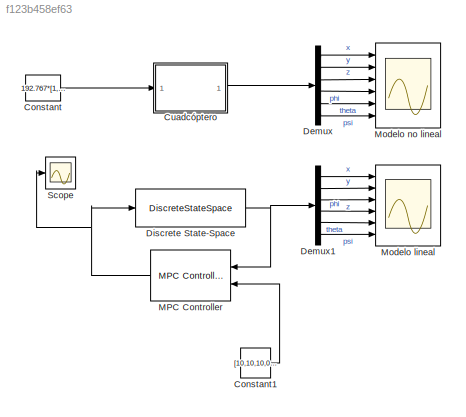
MODEL slx_f123b458ef63
KIND model
CONFIG AbsTol = auto
CONFIG FixedStep = auto
CONFIG MaxStep = auto
CONFIG MinStep = auto
CONFIG RelTol = 1e-3
CONFIG SampleTimeConstraint = Unconstrained
CONFIG Solver = ode45
CONFIG SolverMode = Auto
CONFIG SolverName = ode45
CONFIG StartTime = 0.0
CONFIG StopTime = 50
BLOCK [Constant] Constant
  Value = 192.767*[1, 1, 1, 1]
BLOCK [Constant] Constant1
  SampleTime = Ts
  Value = [10,10,10,0,0,0]
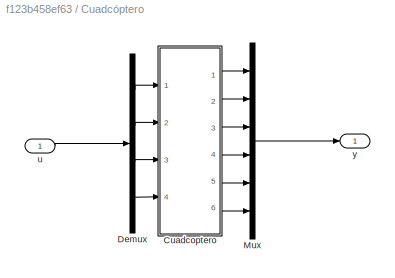
BLOCK [SubSystem] Cuadcóptero
  Ports = [1, 1]
  RequestExecContextInheritance = off
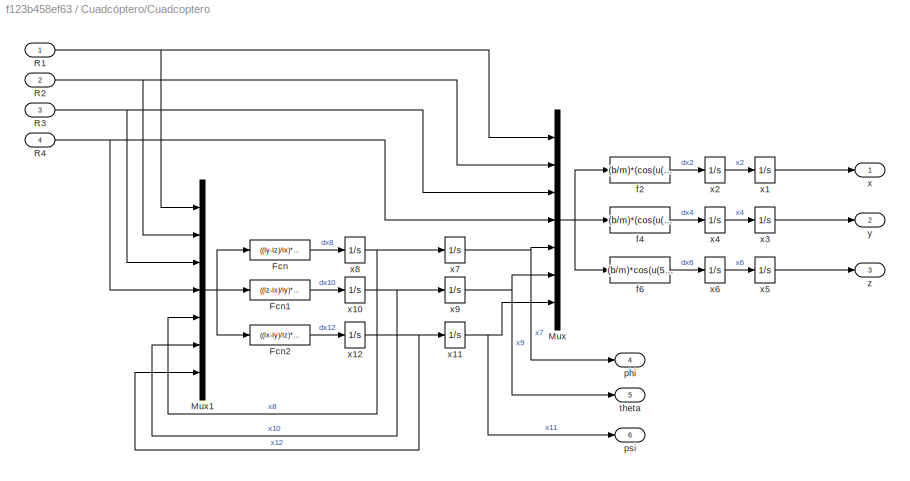
BLOCK [SubSystem] Cuadcóptero/Cuadcoptero
  Ports = [4, 6]
  RequestExecContextInheritance = off
BLOCK [Fcn] Cuadcóptero/Cuadcoptero/Fcn
  Expr = ((Iy-Iz)/Ix)*u(6)*u(7)+(b*L/Ix)*(u(4)^2-u(2)^2)
BLOCK [Fcn] Cuadcóptero/Cuadcoptero/Fcn1
  Expr = ((Iz-Ix)/Iy)*u(5)*u(7)+(b*L/Iy)*(u(3)^2-u(1)^2)
BLOCK [Fcn] Cuadcóptero/Cuadcoptero/Fcn2
  Expr = ((Ix-Iy)/Iz)*u(5)*u(6)+(d/Iz)*(u(1)^2-u(2)^2+u(3)^2-u(4)^2)
BLOCK [Mux] Cuadcóptero/Cuadcoptero/Mux
  DisplayOption = bar
  Inputs = 7
  Ports = [7, 1]
BLOCK [Mux] Cuadcóptero/Cuadcoptero/Mux1
  DisplayOption = bar
  Inputs = 7
  Ports = [7, 1]
BLOCK [Inport] Cuadcóptero/Cuadcoptero/R1
  IconDisplay = Port number
BLOCK [Inport] Cuadcóptero/Cuadcoptero/R2
  IconDisplay = Port number
  Port = 2
BLOCK [Inport] Cuadcóptero/Cuadcoptero/R3
  IconDisplay = Port number
  Port = 3
BLOCK [Inport] Cuadcóptero/Cuadcoptero/R4
  IconDisplay = Port number
  Port = 4
BLOCK [Fcn] Cuadcóptero/Cuadcoptero/f2
  Expr = (b/m)*(cos(u(5))*sin(u(6))*cos(u(7))+sin(u(5))*sin(u(7)))*(u(1)^2+u(2)^2+u(3)^2+u(4)^2)
BLOCK [Fcn] Cuadcóptero/Cuadcoptero/f4
  Expr = (b/m)*(cos(u(5))*sin(u(6))*sin(u(7))-sin(u(5))*cos(u(7)))*(u(1)^2+u(2)^2+u(3)^2+u(4)^2)
BLOCK [Fcn] Cuadcóptero/Cuadcoptero/f6
  Expr = (b/m)*cos(u(5))*cos(u(6))*(u(1)^2+u(2)^2+u(3)^2+u(4)^2)-g
BLOCK [Outport] Cuadcóptero/Cuadcoptero/phi
  IconDisplay = Port number
  Port = 4
BLOCK [Outport] Cuadcóptero/Cuadcoptero/psi
  IconDisplay = Port number
  Port = 6
BLOCK [Outport] Cuadcóptero/Cuadcoptero/theta
  IconDisplay = Port number
  Port = 5
BLOCK [Outport] Cuadcóptero/Cuadcoptero/x
  IconDisplay = Port number
BLOCK [Integrator] Cuadcóptero/Cuadcoptero/x1
  InitialCondition = x1_0
  Ports = [1, 1]
BLOCK [Integrator] Cuadcóptero/Cuadcoptero/x10
  InitialCondition = x10_0
  Ports = [1, 1]
BLOCK [Integrator] Cuadcóptero/Cuadcoptero/x11
  InitialCondition = x11_0
  Ports = [1, 1]
BLOCK [Integrator] Cuadcóptero/Cuadcoptero/x12
  InitialCondition = x12_0
  Ports = [1, 1]
BLOCK [Integrator] Cuadcóptero/Cuadcoptero/x2
  InitialCondition = x2_0
  Ports = [1, 1]
BLOCK [Integrator] Cuadcóptero/Cuadcoptero/x3
  InitialCondition = x3_0
  Ports = [1, 1]
BLOCK [Integrator] Cuadcóptero/Cuadcoptero/x4
  InitialCondition = x4_0
  Ports = [1, 1]
BLOCK [Integrator] Cuadcóptero/Cuadcoptero/x5
  InitialCondition = x5_0
  Ports = [1, 1]
BLOCK [Integrator] Cuadcóptero/Cuadcoptero/x6
  InitialCondition = x6_0
  Ports = [1, 1]
BLOCK [Integrator] Cuadcóptero/Cuadcoptero/x7
  InitialCondition = x7_0
  Ports = [1, 1]
BLOCK [Integrator] Cuadcóptero/Cuadcoptero/x8
  InitialCondition = x8_0
  Ports = [1, 1]
BLOCK [Integrator] Cuadcóptero/Cuadcoptero/x9
  InitialCondition = x9_0
  Ports = [1, 1]
BLOCK [Outport] Cuadcóptero/Cuadcoptero/y
  IconDisplay = Port number
  Port = 2
BLOCK [Outport] Cuadcóptero/Cuadcoptero/z
  IconDisplay = Port number
  Port = 3
BLOCK [Demux] Cuadcóptero/Demux
  DisplayOption = bar
  Ports = [1, 4]
BLOCK [Mux] Cuadcóptero/Mux
  DisplayOption = bar
  Inputs = 6
  Ports = [6, 1]
BLOCK [Inport] Cuadcóptero/u
  IconDisplay = Port number
BLOCK [Outport] Cuadcóptero/y
  IconDisplay = Port number
BLOCK [Demux] Demux
  DisplayOption = bar
  Outputs = 6
  Ports = [1, 6]
BLOCK [Demux] Demux1
  DisplayOption = bar
  Outputs = 6
  Ports = [1, 6]
BLOCK [DiscreteStateSpace] Discrete State-Space
  A = sys.A
  B = sys.B
  C = sys.C
  D = sys.D
  SampleTime = Ts
  X0 = [x1_0,x2_0,x3_0,x4_0,x5_0,x6_0,x7_0,x8_0,x9_0,x10_0,x11_0,x12_0]
BLOCK [Reference] MPC Controller  REF=mpclib/MPC Controller  (lib defined in mdl_ae329e0e0455)
  BlockDataType = double
  Ports = [2, 1]
  SCDEnableBlockLinearizationSpecification = on
  SampleTimeInherited = off
  SourceBlock = mpclib/MPC Controller
  SourceType = MPC
  cost_outport = off
  duwt_inport = off
  enable_value = 0
  from_project = off
  is_designfromscratch = 0
  is_multiple = 0
  lims_inport = off
  md_from_ws = off
  md_inport = off
  md_preview = off
  md_signal_name = []
  mpcobj = MPC1
  mv_inport = off
  n_md = 0
  n_mo = 6
  n_mv = 4
  n_ts = 0.05
  project_file = MPCtask.mat
  ref_from_ws = off
  ref_preview = off
  ref_signal_name = []
  return_qpstatus = off
  return_sequence = off
  return_state = off
  return_u0 = off
  rhoeps_inport = off
  state_inport = off
  switch_inport = off
  uref_inport = off
  uwt_inport = off
  ywt_inport = off
BLOCK [Scope] Modelo lineal
  Floating = off
  NumInputPorts = 6
  Ports = [6]
  SaveName = ScopeData1
  TickLabels = on
  YMax = 5~5~5~5~5~5
  YMin = -5~-5~-5~-5~-5~-5
BLOCK [Scope] Modelo no lineal
  Floating = off
  NumInputPorts = 6
  Ports = [6]
  TickLabels = on
  YMax = 5~5~5~5~5~5
  YMin = -5~-5~-5~-5~-5~-5
BLOCK [Scope] Scope
  Floating = off
  NumInputPorts = 1
  Ports = [1]
  SaveName = ScopeData2
LINE Constant1:1 -> MPC Controller:2
LINE Constant:1 -> Cuadcóptero:1
LINE Cuadcóptero/Cuadcoptero/Fcn1:1 -> Cuadcóptero/Cuadcoptero/x10:1
LINE Cuadcóptero/Cuadcoptero/Fcn2:1 -> Cuadcóptero/Cuadcoptero/x12:1
LINE Cuadcóptero/Cuadcoptero/Fcn:1 -> Cuadcóptero/Cuadcoptero/x8:1
NET Cuadcóptero/Cuadcoptero/Mux1:1 -> Cuadcóptero/Cuadcoptero/Fcn1:1, Cuadcóptero/Cuadcoptero/Fcn2:1, Cuadcóptero/Cuadcoptero/Fcn:1
NET Cuadcóptero/Cuadcoptero/Mux:1 -> Cuadcóptero/Cuadcoptero/f2:1, Cuadcóptero/Cuadcoptero/f4:1, Cuadcóptero/Cuadcoptero/f6:1
NET Cuadcóptero/Cuadcoptero/R1:1 -> Cuadcóptero/Cuadcoptero/Mux1:1, Cuadcóptero/Cuadcoptero/Mux:1
NET Cuadcóptero/Cuadcoptero/R2:1 -> Cuadcóptero/Cuadcoptero/Mux1:2, Cuadcóptero/Cuadcoptero/Mux:2
NET Cuadcóptero/Cuadcoptero/R3:1 -> Cuadcóptero/Cuadcoptero/Mux1:3, Cuadcóptero/Cuadcoptero/Mux:3
NET Cuadcóptero/Cuadcoptero/R4:1 -> Cuadcóptero/Cuadcoptero/Mux1:4, Cuadcóptero/Cuadcoptero/Mux:4
LINE Cuadcóptero/Cuadcoptero/f2:1 -> Cuadcóptero/Cuadcoptero/x2:1
LINE Cuadcóptero/Cuadcoptero/f4:1 -> Cuadcóptero/Cuadcoptero/x4:1
LINE Cuadcóptero/Cuadcoptero/f6:1 -> Cuadcóptero/Cuadcoptero/x6:1
NET Cuadcóptero/Cuadcoptero/x10:1 -> Cuadcóptero/Cuadcoptero/Mux1:6, Cuadcóptero/Cuadcoptero/x9:1
NET Cuadcóptero/Cuadcoptero/x11:1 -> Cuadcóptero/Cuadcoptero/Mux:7, Cuadcóptero/Cuadcoptero/psi:1
NET Cuadcóptero/Cuadcoptero/x12:1 -> Cuadcóptero/Cuadcoptero/Mux1:7, Cuadcóptero/Cuadcoptero/x11:1
LINE Cuadcóptero/Cuadcoptero/x1:1 -> Cuadcóptero/Cuadcoptero/x:1
LINE Cuadcóptero/Cuadcoptero/x2:1 -> Cuadcóptero/Cuadcoptero/x1:1
LINE Cuadcóptero/Cuadcoptero/x3:1 -> Cuadcóptero/Cuadcoptero/y:1
LINE Cuadcóptero/Cuadcoptero/x4:1 -> Cuadcóptero/Cuadcoptero/x3:1
LINE Cuadcóptero/Cuadcoptero/x5:1 -> Cuadcóptero/Cuadcoptero/z:1
LINE Cuadcóptero/Cuadcoptero/x6:1 -> Cuadcóptero/Cuadcoptero/x5:1
NET Cuadcóptero/Cuadcoptero/x7:1 -> Cuadcóptero/Cuadcoptero/Mux:5, Cuadcóptero/Cuadcoptero/phi:1
NET Cuadcóptero/Cuadcoptero/x8:1 -> Cuadcóptero/Cuadcoptero/Mux1:5, Cuadcóptero/Cuadcoptero/x7:1
NET Cuadcóptero/Cuadcoptero/x9:1 -> Cuadcóptero/Cuadcoptero/Mux:6, Cuadcóptero/Cuadcoptero/theta:1
LINE Cuadcóptero/Cuadcoptero:1 -> Cuadcóptero/Mux:1
LINE Cuadcóptero/Cuadcoptero:2 -> Cuadcóptero/Mux:2
LINE Cuadcóptero/Cuadcoptero:3 -> Cuadcóptero/Mux:3
LINE Cuadcóptero/Cuadcoptero:4 -> Cuadcóptero/Mux:4
LINE Cuadcóptero/Cuadcoptero:5 -> Cuadcóptero/Mux:5
LINE Cuadcóptero/Cuadcoptero:6 -> Cuadcóptero/Mux:6
LINE Cuadcóptero/Demux:1 -> Cuadcóptero/Cuadcoptero:1
LINE Cuadcóptero/Demux:2 -> Cuadcóptero/Cuadcoptero:2
LINE Cuadcóptero/Demux:3 -> Cuadcóptero/Cuadcoptero:3
LINE Cuadcóptero/Demux:4 -> Cuadcóptero/Cuadcoptero:4
LINE Cuadcóptero/Mux:1 -> Cuadcóptero/y:1
LINE Cuadcóptero/u:1 -> Cuadcóptero/Demux:1
LINE Cuadcóptero:1 -> Demux:1
LINE Demux1:1 -> Modelo lineal:1
LINE Demux1:2 -> Modelo lineal:2
LINE Demux1:3 -> Modelo lineal:3
LINE Demux1:4 -> Modelo lineal:4
LINE Demux1:5 -> Modelo lineal:5
LINE Demux1:6 -> Modelo lineal:6
LINE Demux:1 -> Modelo no lineal:1
LINE Demux:2 -> Modelo no lineal:2
LINE Demux:3 -> Modelo no lineal:3
LINE Demux:4 -> Modelo no lineal:4
LINE Demux:5 -> Modelo no lineal:5
LINE Demux:6 -> Modelo no lineal:6
NET Discrete State-Space:1 -> Demux1:1, MPC Controller:1
NET MPC Controller:1 -> Discrete State-Space:1, Scope:1
note: NET lines group one-source signal fan-out (src -> all destinations, sorted); 1:1 wires keep LINE
